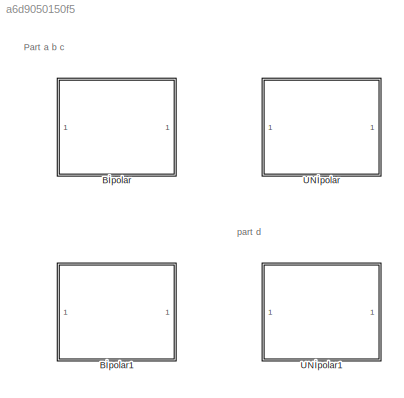
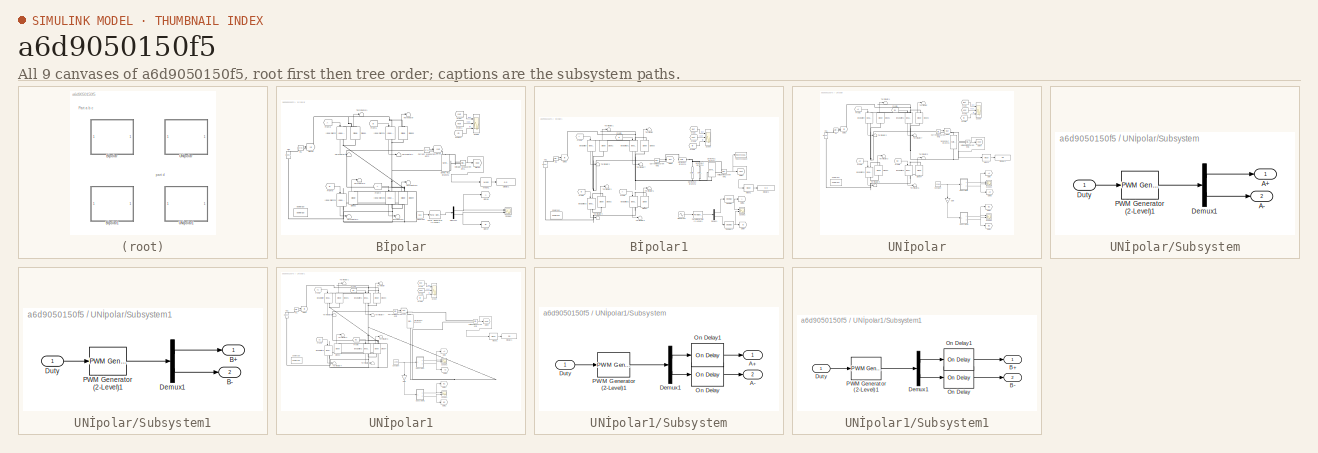
[diagram: thumbnail index - all 9 canvases of the model, root first then tree order]
MODEL slx_a6d9050150f5
KIND model
CONFIG AbsTol = auto
CONFIG FixedStep = auto
CONFIG MaxStep = auto
CONFIG MinStep = auto
CONFIG RelTol = 1e-3
CONFIG SampleTimeConstraint = Unconstrained
CONFIG Solver = VariableStepAuto
CONFIG SolverMode = Auto
CONFIG SolverName = VariableStepAuto
CONFIG StartTime = 0.0
CONFIG StopTime = 20e-3
BLOCK [SubSystem] Bİpolar
  Ports = []
  RequestExecContextInheritance = off
  Variant = off
BLOCK [Constant] Bİpolar/Constant
  Value = 5/16
BLOCK [Reference] Bİpolar/Current Measurement2  REF=powerlib/Measurements/Current Measurement
  Ports = [0, 1, 0, 0, 0, 1, 1]
  SourceBlock = powerlib/Measurements/Current Measurement
  SourceType = Current Measurement
  UserDataPersistent = on
BLOCK [Demux] Bİpolar/Demux1
  DisplayOption = bar
  Outputs = 2
  Ports = [1, 2]
BLOCK [Reference] Bİpolar/Diode1  REF=powerlib/Power
Electronics/Diode
  Ports = [0, 1, 0, 0, 0, 1, 1]
  SourceBlock = powerlib/Power\nElectronics/Diode
  SourceType = Diode
BLOCK [Reference] Bİpolar/Diode2  REF=powerlib/Power
Electronics/Diode
  Ports = [0, 1, 0, 0, 0, 1, 1]
  SourceBlock = powerlib/Power\nElectronics/Diode
  SourceType = Diode
BLOCK [Reference] Bİpolar/Diode3  REF=powerlib/Power
Electronics/Diode
  Ports = [0, 1, 0, 0, 0, 1, 1]
  SourceBlock = powerlib/Power\nElectronics/Diode
  SourceType = Diode
BLOCK [Reference] Bİpolar/Diode4  REF=powerlib/Power
Electronics/Diode
  Ports = [0, 1, 0, 0, 0, 1, 1]
  SourceBlock = powerlib/Power\nElectronics/Diode
  SourceType = Diode
BLOCK [Display] Bİpolar/Display1
  Decimation = 1
  Ports = [1]
BLOCK [From] Bİpolar/From
  GotoTag = Iout
BLOCK [From] Bİpolar/From1
  GotoTag = Vout
BLOCK [From] Bİpolar/From2
  GotoTag = Iin
BLOCK [From] Bİpolar/From3
BLOCK [From] Bİpolar/From4
BLOCK [From] Bİpolar/From5
  GotoTag = B
BLOCK [From] Bİpolar/From6
  GotoTag = B
BLOCK [Goto] Bİpolar/Goto3
  GotoTag = Iin
BLOCK [Goto] Bİpolar/Goto4
  GotoTag = Vout
BLOCK [Goto] Bİpolar/Goto5
  GotoTag = Iout
BLOCK [Goto] Bİpolar/Goto6
BLOCK [Goto] Bİpolar/Goto7
  GotoTag = B
BLOCK [Reference] Bİpolar/Ideal Switch  REF=powerlib/Power
Electronics/Ideal Switch
  Ports = [1, 1, 0, 0, 0, 1, 1]
  SourceBlock = powerlib/Power\nElectronics/Ideal Switch
  SourceType = Ideal Switch
BLOCK [Reference] Bİpolar/Ideal Switch1  REF=powerlib/Power
Electronics/Ideal Switch
  Ports = [1, 1, 0, 0, 0, 1, 1]
  SourceBlock = powerlib/Power\nElectronics/Ideal Switch
  SourceType = Ideal Switch
BLOCK [Reference] Bİpolar/Ideal Switch2  REF=powerlib/Power
Electronics/Ideal Switch
  Ports = [1, 1, 0, 0, 0, 1, 1]
  SourceBlock = powerlib/Power\nElectronics/Ideal Switch
  SourceType = Ideal Switch
BLOCK [Reference] Bİpolar/Ideal Switch3  REF=powerlib/Power
Electronics/Ideal Switch
  Ports = [1, 1, 0, 0, 0, 1, 1]
  SourceBlock = powerlib/Power\nElectronics/Ideal Switch
  SourceType = Ideal Switch
BLOCK [Reference] Bİpolar/Mean1  REF=powerlib_meascontrol/Measurements/Mean
  Ports = [1, 1]
  SourceBlock = powerlib_meascontrol/Measurements/Mean
  SourceType = Mean
BLOCK [Reference] Bİpolar/PWM Generator (2-Level)1  REF=powerlib_meascontrol/Pulse & Signal
Generators/PWM Generator
(2-Level)
  Ports = [1, 1]
  SourceBlock = powerlib_meascontrol/Pulse & Signal\nGenerators/PWM Generator\n(2-Level)
  SourceType = PWM Generator (2-Level)
BLOCK [Scope] Bİpolar/Scope
  NumInputPorts = 3
  Ports = [3]
  ScopeSpecificationString = Simulink.scopes.TimeScopeBlockCfg('CurrentConfiguration', extmgr.ConfigurationSet(extmgr.Configuration('Core','General UI',true,'FigureColor',[1 1 1]),extmgr.Configuration('Core','Source UI',true),extmgr.Configuration('Sources','WiredSimulink',true),extmgr.Configuration('Visuals','Time Domain',true,'SerializedDisplays',{struct('MinYLimReal','11.16066','MaxYLimReal','13.58634','YLabelReal','','MinY...<+3433ch>
BLOCK [Scope] Bİpolar/Scope2
  NumInputPorts = 2
  Ports = [2]
  ScopeSpecificationString = Simulink.scopes.TimeScopeBlockCfg('CurrentConfiguration', extmgr.ConfigurationSet(extmgr.Configuration('Core','General UI',true),extmgr.Configuration('Core','Source UI',true),extmgr.Configuration('Sources','WiredSimulink',true,'DataLoggingVariableName','ScopeData2'),extmgr.Configuration('Visuals','Time Domain',true,'SerializedDisplays',{struct('MinYLimReal','-0.01288','MaxYLimReal','1.03726','YLab...<+2051ch>
BLOCK [Reference] Bİpolar/Series RLC Branch1  REF=powerlib/Elements/Series RLC Branch
  Ports = [0, 0, 0, 0, 0, 1, 1]
  SourceBlock = powerlib/Elements/Series RLC Branch
  SourceType = Series RLC Branch
BLOCK [Terminator] Bİpolar/Terminator
BLOCK [Terminator] Bİpolar/Terminator1
BLOCK [Terminator] Bİpolar/Terminator2
BLOCK [Terminator] Bİpolar/Terminator3
BLOCK [Terminator] Bİpolar/Terminator4
BLOCK [Terminator] Bİpolar/Terminator5
BLOCK [Terminator] Bİpolar/Terminator6
BLOCK [Terminator] Bİpolar/Terminator7
BLOCK [Reference] Bİpolar/Vd1  REF=powerlib/Electrical
Sources/DC Voltage Source
  Ports = [0, 0, 0, 0, 0, 1, 1]
  SourceBlock = powerlib/Electrical\nSources/DC Voltage Source
  SourceType = DC Voltage Source
BLOCK [Reference] Bİpolar/Voltage Measurement1  REF=powerlib/Measurements/Voltage Measurement
  Ports = [0, 1, 0, 0, 0, 2]
  SourceBlock = powerlib/Measurements/Voltage Measurement
  SourceType = Voltage Measurement
  UserDataPersistent = on
BLOCK [Reference] Bİpolar/in1  REF=powerlib/Measurements/Current Measurement
  Ports = [0, 1, 0, 0, 0, 1, 1]
  SourceBlock = powerlib/Measurements/Current Measurement
  SourceType = Current Measurement
  UserDataPersistent = on
BLOCK [Reference] Bİpolar/powergui  REF=powerlib/powergui
  Ports = []
  Priority = 1
  SourceBlock = powerlib/powergui
  SourceType = PSB option menu block
  UserDataPersistent = on
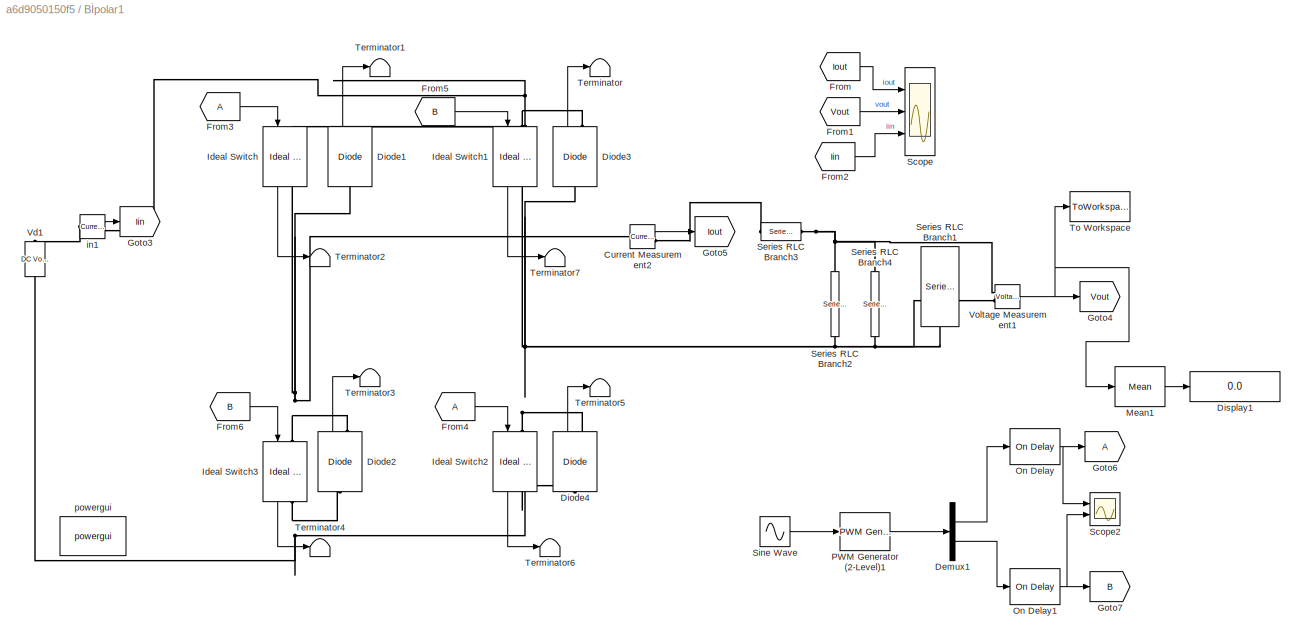
BLOCK [SubSystem] Bİpolar1
  Ports = []
  RequestExecContextInheritance = off
  Variant = off
BLOCK [Reference] Bİpolar1/Current Measurement2  REF=powerlib/Measurements/Current Measurement
  Ports = [0, 1, 0, 0, 0, 1, 1]
  SourceBlock = powerlib/Measurements/Current Measurement
  SourceType = Current Measurement
  UserDataPersistent = on
BLOCK [Demux] Bİpolar1/Demux1
  DisplayOption = bar
  Outputs = 2
  Ports = [1, 2]
BLOCK [Reference] Bİpolar1/Diode1  REF=powerlib/Power
Electronics/Diode
  Ports = [0, 1, 0, 0, 0, 1, 1]
  SourceBlock = powerlib/Power\nElectronics/Diode
  SourceType = Diode
BLOCK [Reference] Bİpolar1/Diode2  REF=powerlib/Power
Electronics/Diode
  Ports = [0, 1, 0, 0, 0, 1, 1]
  SourceBlock = powerlib/Power\nElectronics/Diode
  SourceType = Diode
BLOCK [Reference] Bİpolar1/Diode3  REF=powerlib/Power
Electronics/Diode
  Ports = [0, 1, 0, 0, 0, 1, 1]
  SourceBlock = powerlib/Power\nElectronics/Diode
  SourceType = Diode
BLOCK [Reference] Bİpolar1/Diode4  REF=powerlib/Power
Electronics/Diode
  Ports = [0, 1, 0, 0, 0, 1, 1]
  SourceBlock = powerlib/Power\nElectronics/Diode
  SourceType = Diode
BLOCK [Display] Bİpolar1/Display1
  Decimation = 1
  Ports = [1]
BLOCK [From] Bİpolar1/From
  GotoTag = Iout
BLOCK [From] Bİpolar1/From1
  GotoTag = Vout
BLOCK [From] Bİpolar1/From2
  GotoTag = Iin
BLOCK [From] Bİpolar1/From3
BLOCK [From] Bİpolar1/From4
BLOCK [From] Bİpolar1/From5
  GotoTag = B
BLOCK [From] Bİpolar1/From6
  GotoTag = B
BLOCK [Goto] Bİpolar1/Goto3
  GotoTag = Iin
BLOCK [Goto] Bİpolar1/Goto4
  GotoTag = Vout
BLOCK [Goto] Bİpolar1/Goto5
  GotoTag = Iout
BLOCK [Goto] Bİpolar1/Goto6
BLOCK [Goto] Bİpolar1/Goto7
  GotoTag = B
BLOCK [Reference] Bİpolar1/Ideal Switch  REF=powerlib/Power
Electronics/Ideal Switch
  Ports = [1, 1, 0, 0, 0, 1, 1]
  SourceBlock = powerlib/Power\nElectronics/Ideal Switch
  SourceType = Ideal Switch
BLOCK [Reference] Bİpolar1/Ideal Switch1  REF=powerlib/Power
Electronics/Ideal Switch
  Ports = [1, 1, 0, 0, 0, 1, 1]
  SourceBlock = powerlib/Power\nElectronics/Ideal Switch
  SourceType = Ideal Switch
BLOCK [Reference] Bİpolar1/Ideal Switch2  REF=powerlib/Power
Electronics/Ideal Switch
  Ports = [1, 1, 0, 0, 0, 1, 1]
  SourceBlock = powerlib/Power\nElectronics/Ideal Switch
  SourceType = Ideal Switch
BLOCK [Reference] Bİpolar1/Ideal Switch3  REF=powerlib/Power
Electronics/Ideal Switch
  Ports = [1, 1, 0, 0, 0, 1, 1]
  SourceBlock = powerlib/Power\nElectronics/Ideal Switch
  SourceType = Ideal Switch
BLOCK [Reference] Bİpolar1/Mean1  REF=powerlib_meascontrol/Measurements/Mean
  Ports = [1, 1]
  SourceBlock = powerlib_meascontrol/Measurements/Mean
  SourceType = Mean
BLOCK [Reference] Bİpolar1/On Delay  REF=powerlib_meascontrol/Logic/On Delay
  Ports = [1, 1]
  SourceBlock = powerlib_meascontrol/Logic/On Delay
  SourceType = On/Off Delay
BLOCK [Reference] Bİpolar1/On Delay1  REF=powerlib_meascontrol/Logic/On Delay
  Ports = [1, 1]
  SourceBlock = powerlib_meascontrol/Logic/On Delay
  SourceType = On/Off Delay
BLOCK [Reference] Bİpolar1/PWM Generator (2-Level)1  REF=powerlib_meascontrol/Pulse & Signal
Generators/PWM Generator
(2-Level)
  Ports = [1, 1]
  SourceBlock = powerlib_meascontrol/Pulse & Signal\nGenerators/PWM Generator\n(2-Level)
  SourceType = PWM Generator (2-Level)
BLOCK [Scope] Bİpolar1/Scope
  NumInputPorts = 3
  Ports = [3]
  ScopeSpecificationString = Simulink.scopes.TimeScopeBlockCfg('CurrentConfiguration', extmgr.ConfigurationSet(extmgr.Configuration('Core','General UI',true,'FigureColor',[1 1 1]),extmgr.Configuration('Core','Source UI',true),extmgr.Configuration('Sources','WiredSimulink',true),extmgr.Configuration('Visuals','Time Domain',true,'SerializedDisplays',{struct('MinYLimReal','-14.62757','MaxYLimReal','14.63184','YLabelReal','','Min...<+3514ch>
BLOCK [Scope] Bİpolar1/Scope2
  NumInputPorts = 2
  Ports = [2]
  ScopeSpecificationString = Simulink.scopes.TimeScopeBlockCfg('CurrentConfiguration', extmgr.ConfigurationSet(extmgr.Configuration('Core','General UI',true),extmgr.Configuration('Core','Source UI',true),extmgr.Configuration('Sources','WiredSimulink',true,'DataLoggingVariableName','ScopeData2'),extmgr.Configuration('Visuals','Time Domain',true,'SerializedDisplays',{struct('MinYLimReal','-0.02878','MaxYLimReal','1.05339','YLab...<+2078ch>
BLOCK [Reference] Bİpolar1/Series RLC Branch1  REF=powerlib/Elements/Series RLC Branch
  Ports = [0, 0, 0, 0, 0, 1, 1]
  SourceBlock = powerlib/Elements/Series RLC Branch
  SourceType = Series RLC Branch
BLOCK [Reference] Bİpolar1/Series RLC Branch2  REF=powerlib/Elements/Series RLC Branch
  Ports = [0, 0, 0, 0, 0, 1, 1]
  SourceBlock = powerlib/Elements/Series RLC Branch
  SourceType = Series RLC Branch
BLOCK [Reference] Bİpolar1/Series RLC Branch3  REF=powerlib/Elements/Series RLC Branch
  Ports = [0, 0, 0, 0, 0, 1, 1]
  SourceBlock = powerlib/Elements/Series RLC Branch
  SourceType = Series RLC Branch
BLOCK [Reference] Bİpolar1/Series RLC Branch4  REF=powerlib/Elements/Series RLC Branch
  Ports = [0, 0, 0, 0, 0, 1, 1]
  SourceBlock = powerlib/Elements/Series RLC Branch
  SourceType = Series RLC Branch
BLOCK [Sin] Bİpolar1/Sine Wave
  Amplitude = 36/48
  Frequency = 800*pi
  Ports = [0, 1]
  SampleTime = 0
BLOCK [Terminator] Bİpolar1/Terminator
BLOCK [Terminator] Bİpolar1/Terminator1
BLOCK [Terminator] Bİpolar1/Terminator2
BLOCK [Terminator] Bİpolar1/Terminator3
BLOCK [Terminator] Bİpolar1/Terminator4
BLOCK [Terminator] Bİpolar1/Terminator5
BLOCK [Terminator] Bİpolar1/Terminator6
BLOCK [Terminator] Bİpolar1/Terminator7
BLOCK [ToWorkspace] Bİpolar1/To Workspace
  FixptAsFi = on
  MaxDataPoints = inf
  Ports = [1]
  SampleTime = -1
  Save2DSignal = 3-D array (concatenate along third dimension)
  SaveFormat = Structure With Time
  VariableName = sind
BLOCK [Reference] Bİpolar1/Vd1  REF=powerlib/Electrical
Sources/DC Voltage Source
  Ports = [0, 0, 0, 0, 0, 1, 1]
  SourceBlock = powerlib/Electrical\nSources/DC Voltage Source
  SourceType = DC Voltage Source
BLOCK [Reference] Bİpolar1/Voltage Measurement1  REF=powerlib/Measurements/Voltage Measurement
  Ports = [0, 1, 0, 0, 0, 2]
  SourceBlock = powerlib/Measurements/Voltage Measurement
  SourceType = Voltage Measurement
  UserDataPersistent = on
BLOCK [Reference] Bİpolar1/in1  REF=powerlib/Measurements/Current Measurement
  Ports = [0, 1, 0, 0, 0, 1, 1]
  SourceBlock = powerlib/Measurements/Current Measurement
  SourceType = Current Measurement
  UserDataPersistent = on
BLOCK [Reference] Bİpolar1/powergui  REF=powerlib/powergui
  Ports = []
  Priority = 1
  SourceBlock = powerlib/powergui
  SourceType = PSB option menu block
  UserDataPersistent = on
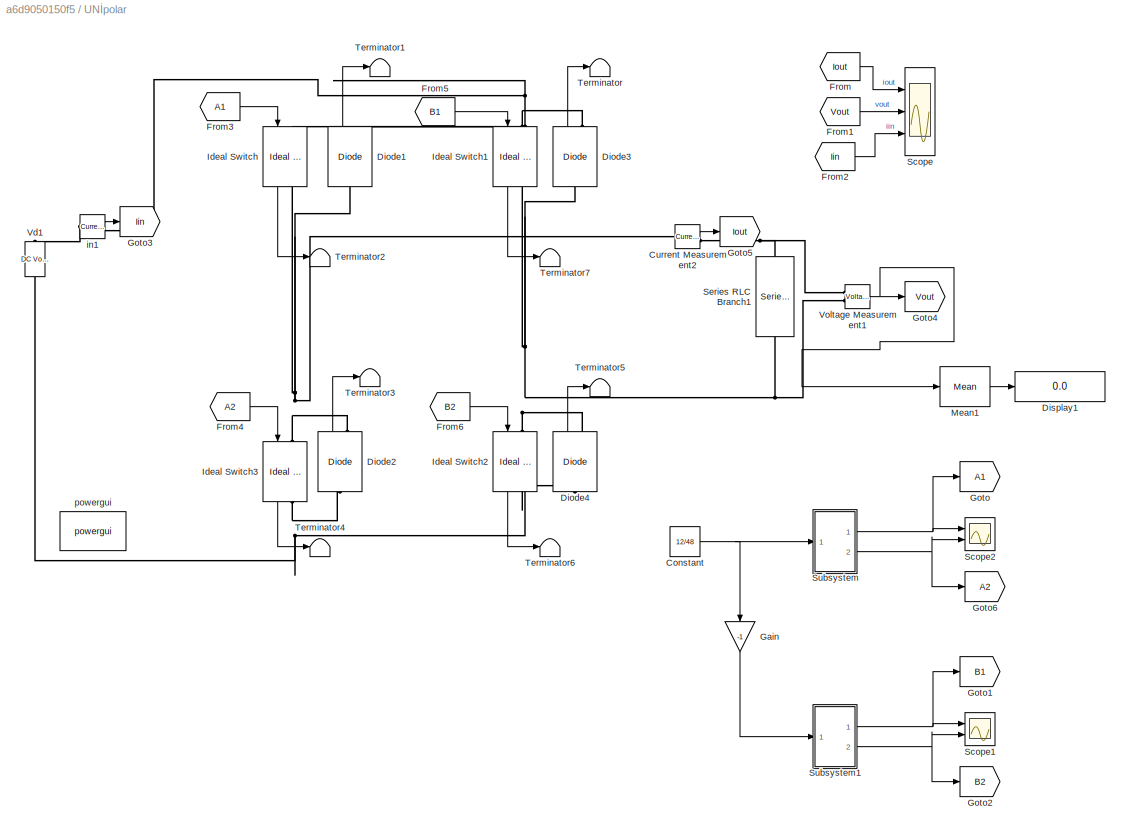
BLOCK [SubSystem] UNİpolar
  Ports = []
  RequestExecContextInheritance = off
  Variant = off
BLOCK [Constant] UNİpolar/Constant
  Value = 12/48
BLOCK [Reference] UNİpolar/Current Measurement2  REF=powerlib/Measurements/Current Measurement
  Ports = [0, 1, 0, 0, 0, 1, 1]
  SourceBlock = powerlib/Measurements/Current Measurement
  SourceType = Current Measurement
  UserDataPersistent = on
BLOCK [Reference] UNİpolar/Diode1  REF=powerlib/Power
Electronics/Diode
  Ports = [0, 1, 0, 0, 0, 1, 1]
  SourceBlock = powerlib/Power\nElectronics/Diode
  SourceType = Diode
BLOCK [Reference] UNİpolar/Diode2  REF=powerlib/Power
Electronics/Diode
  Ports = [0, 1, 0, 0, 0, 1, 1]
  SourceBlock = powerlib/Power\nElectronics/Diode
  SourceType = Diode
BLOCK [Reference] UNİpolar/Diode3  REF=powerlib/Power
Electronics/Diode
  Ports = [0, 1, 0, 0, 0, 1, 1]
  SourceBlock = powerlib/Power\nElectronics/Diode
  SourceType = Diode
BLOCK [Reference] UNİpolar/Diode4  REF=powerlib/Power
Electronics/Diode
  Ports = [0, 1, 0, 0, 0, 1, 1]
  SourceBlock = powerlib/Power\nElectronics/Diode
  SourceType = Diode
BLOCK [Display] UNİpolar/Display1
  Decimation = 1
  Ports = [1]
BLOCK [From] UNİpolar/From
  GotoTag = Iout
BLOCK [From] UNİpolar/From1
  GotoTag = Vout
BLOCK [From] UNİpolar/From2
  GotoTag = Iin
BLOCK [From] UNİpolar/From3
  GotoTag = A1
BLOCK [From] UNİpolar/From4
  GotoTag = A2
BLOCK [From] UNİpolar/From5
  GotoTag = B1
BLOCK [From] UNİpolar/From6
  GotoTag = B2
BLOCK [Gain] UNİpolar/Gain
  Gain = -1
  OutDataTypeStr = Inherit: Inherit via internal rule
  ParamDataTypeStr = Inherit: Inherit via internal rule
  SaturateOnIntegerOverflow = off
BLOCK [Goto] UNİpolar/Goto
  GotoTag = A1
BLOCK [Goto] UNİpolar/Goto1
  GotoTag = B1
BLOCK [Goto] UNİpolar/Goto2
  GotoTag = B2
BLOCK [Goto] UNİpolar/Goto3
  GotoTag = Iin
BLOCK [Goto] UNİpolar/Goto4
  GotoTag = Vout
BLOCK [Goto] UNİpolar/Goto5
  GotoTag = Iout
BLOCK [Goto] UNİpolar/Goto6
  GotoTag = A2
BLOCK [Reference] UNİpolar/Ideal Switch  REF=powerlib/Power
Electronics/Ideal Switch
  Ports = [1, 1, 0, 0, 0, 1, 1]
  SourceBlock = powerlib/Power\nElectronics/Ideal Switch
  SourceType = Ideal Switch
BLOCK [Reference] UNİpolar/Ideal Switch1  REF=powerlib/Power
Electronics/Ideal Switch
  Ports = [1, 1, 0, 0, 0, 1, 1]
  SourceBlock = powerlib/Power\nElectronics/Ideal Switch
  SourceType = Ideal Switch
BLOCK [Reference] UNİpolar/Ideal Switch2  REF=powerlib/Power
Electronics/Ideal Switch
  Ports = [1, 1, 0, 0, 0, 1, 1]
  SourceBlock = powerlib/Power\nElectronics/Ideal Switch
  SourceType = Ideal Switch
BLOCK [Reference] UNİpolar/Ideal Switch3  REF=powerlib/Power
Electronics/Ideal Switch
  Ports = [1, 1, 0, 0, 0, 1, 1]
  SourceBlock = powerlib/Power\nElectronics/Ideal Switch
  SourceType = Ideal Switch
BLOCK [Reference] UNİpolar/Mean1  REF=powerlib_meascontrol/Measurements/Mean
  Ports = [1, 1]
  SourceBlock = powerlib_meascontrol/Measurements/Mean
  SourceType = Mean
BLOCK [Scope] UNİpolar/Scope
  NumInputPorts = 3
  Ports = [3]
  ScopeSpecificationString = Simulink.scopes.TimeScopeBlockCfg('CurrentConfiguration', extmgr.ConfigurationSet(extmgr.Configuration('Core','General UI',true,'FigureColor',[1 1 1]),extmgr.Configuration('Core','Source UI',true),extmgr.Configuration('Sources','WiredSimulink',true),extmgr.Configuration('Visuals','Time Domain',true,'SerializedDisplays',{struct('MinYLimReal','11.76245','MaxYLimReal','12.82649','YLabelReal','','MinY...<+3460ch>
BLOCK [Scope] UNİpolar/Scope1
  NumInputPorts = 2
  Ports = [2]
  ScopeSpecificationString = Simulink.scopes.TimeScopeBlockCfg('CurrentConfiguration', extmgr.ConfigurationSet(extmgr.Configuration('Core','General UI',true),extmgr.Configuration('Core','Source UI',true),extmgr.Configuration('Sources','WiredSimulink',true,'DataLoggingVariableName','ScopeData1'),extmgr.Configuration('Visuals','Time Domain',true,'SerializedDisplays',{struct('MinYLimReal','-0.01288','MaxYLimReal','1.03726','YLab...<+2051ch>
BLOCK [Scope] UNİpolar/Scope2
  NumInputPorts = 2
  Ports = [2]
  ScopeSpecificationString = Simulink.scopes.TimeScopeBlockCfg('CurrentConfiguration', extmgr.ConfigurationSet(extmgr.Configuration('Core','General UI',true),extmgr.Configuration('Core','Source UI',true),extmgr.Configuration('Sources','WiredSimulink',true,'DataLoggingVariableName','ScopeData2'),extmgr.Configuration('Visuals','Time Domain',true,'SerializedDisplays',{struct('MinYLimReal','-0.01288','MaxYLimReal','1.03726','YLab...<+2051ch>
BLOCK [Reference] UNİpolar/Series RLC Branch1  REF=powerlib/Elements/Series RLC Branch
  Ports = [0, 0, 0, 0, 0, 1, 1]
  SourceBlock = powerlib/Elements/Series RLC Branch
  SourceType = Series RLC Branch
BLOCK [SubSystem] UNİpolar/Subsystem
  Ports = [1, 2]
  RequestExecContextInheritance = off
  Variant = off
BLOCK [Outport] UNİpolar/Subsystem/A+
  IconDisplay = Port number
BLOCK [Outport] UNİpolar/Subsystem/A-
  IconDisplay = Port number
  Port = 2
BLOCK [Demux] UNİpolar/Subsystem/Demux1
  DisplayOption = bar
  Outputs = 2
  Ports = [1, 2]
BLOCK [Inport] UNİpolar/Subsystem/Duty
  IconDisplay = Port number
BLOCK [Reference] UNİpolar/Subsystem/PWM Generator (2-Level)1  REF=powerlib_meascontrol/Pulse & Signal
Generators/PWM Generator
(2-Level)
  Ports = [1, 1]
  SourceBlock = powerlib_meascontrol/Pulse & Signal\nGenerators/PWM Generator\n(2-Level)
  SourceType = PWM Generator (2-Level)
BLOCK [SubSystem] UNİpolar/Subsystem1
  Ports = [1, 2]
  RequestExecContextInheritance = off
  Variant = off
BLOCK [Outport] UNİpolar/Subsystem1/B+
  IconDisplay = Port number
BLOCK [Outport] UNİpolar/Subsystem1/B-
  IconDisplay = Port number
  Port = 2
BLOCK [Demux] UNİpolar/Subsystem1/Demux1
  DisplayOption = bar
  Outputs = 2
  Ports = [1, 2]
BLOCK [Inport] UNİpolar/Subsystem1/Duty
  IconDisplay = Port number
BLOCK [Reference] UNİpolar/Subsystem1/PWM Generator (2-Level)1  REF=powerlib_meascontrol/Pulse & Signal
Generators/PWM Generator
(2-Level)
  Ports = [1, 1]
  SourceBlock = powerlib_meascontrol/Pulse & Signal\nGenerators/PWM Generator\n(2-Level)
  SourceType = PWM Generator (2-Level)
BLOCK [Terminator] UNİpolar/Terminator
BLOCK [Terminator] UNİpolar/Terminator1
BLOCK [Terminator] UNİpolar/Terminator2
BLOCK [Terminator] UNİpolar/Terminator3
BLOCK [Terminator] UNİpolar/Terminator4
BLOCK [Terminator] UNİpolar/Terminator5
BLOCK [Terminator] UNİpolar/Terminator6
BLOCK [Terminator] UNİpolar/Terminator7
BLOCK [Reference] UNİpolar/Vd1  REF=powerlib/Electrical
Sources/DC Voltage Source
  Ports = [0, 0, 0, 0, 0, 1, 1]
  SourceBlock = powerlib/Electrical\nSources/DC Voltage Source
  SourceType = DC Voltage Source
BLOCK [Reference] UNİpolar/Voltage Measurement1  REF=powerlib/Measurements/Voltage Measurement
  Ports = [0, 1, 0, 0, 0, 2]
  SourceBlock = powerlib/Measurements/Voltage Measurement
  SourceType = Voltage Measurement
  UserDataPersistent = on
BLOCK [Reference] UNİpolar/in1  REF=powerlib/Measurements/Current Measurement
  Ports = [0, 1, 0, 0, 0, 1, 1]
  SourceBlock = powerlib/Measurements/Current Measurement
  SourceType = Current Measurement
  UserDataPersistent = on
BLOCK [Reference] UNİpolar/powergui  REF=powerlib/powergui
  Ports = []
  Priority = 1
  SourceBlock = powerlib/powergui
  SourceType = PSB option menu block
  UserDataPersistent = on
BLOCK [SubSystem] UNİpolar1
  Ports = []
  RequestExecContextInheritance = off
  Variant = off
BLOCK [Constant] UNİpolar1/Constant
  Value = 12/48
BLOCK [Reference] UNİpolar1/Current Measurement2  REF=powerlib/Measurements/Current Measurement
  Ports = [0, 1, 0, 0, 0, 1, 1]
  SourceBlock = powerlib/Measurements/Current Measurement
  SourceType = Current Measurement
  UserDataPersistent = on
BLOCK [Reference] UNİpolar1/Diode1  REF=powerlib/Power
Electronics/Diode
  Ports = [0, 1, 0, 0, 0, 1, 1]
  SourceBlock = powerlib/Power\nElectronics/Diode
  SourceType = Diode
BLOCK [Reference] UNİpolar1/Diode2  REF=powerlib/Power
Electronics/Diode
  Ports = [0, 1, 0, 0, 0, 1, 1]
  SourceBlock = powerlib/Power\nElectronics/Diode
  SourceType = Diode
BLOCK [Reference] UNİpolar1/Diode3  REF=powerlib/Power
Electronics/Diode
  Ports = [0, 1, 0, 0, 0, 1, 1]
  SourceBlock = powerlib/Power\nElectronics/Diode
  SourceType = Diode
BLOCK [Reference] UNİpolar1/Diode4  REF=powerlib/Power
Electronics/Diode
  Ports = [0, 1, 0, 0, 0, 1, 1]
  SourceBlock = powerlib/Power\nElectronics/Diode
  SourceType = Diode
BLOCK [Display] UNİpolar1/Display1
  Decimation = 1
  Ports = [1]
BLOCK [From] UNİpolar1/From
  GotoTag = Iout
BLOCK [From] UNİpolar1/From1
  GotoTag = Vout
BLOCK [From] UNİpolar1/From2
  GotoTag = Iin
BLOCK [From] UNİpolar1/From3
  GotoTag = A1
BLOCK [From] UNİpolar1/From4
  GotoTag = A2
BLOCK [From] UNİpolar1/From5
  GotoTag = B1
BLOCK [From] UNİpolar1/From6
  GotoTag = B2
BLOCK [Gain] UNİpolar1/Gain
  Gain = -1
  OutDataTypeStr = Inherit: Inherit via internal rule
  ParamDataTypeStr = Inherit: Inherit via internal rule
  SaturateOnIntegerOverflow = off
BLOCK [Goto] UNİpolar1/Goto
  GotoTag = A1
BLOCK [Goto] UNİpolar1/Goto1
  GotoTag = B1
BLOCK [Goto] UNİpolar1/Goto2
  GotoTag = B2
BLOCK [Goto] UNİpolar1/Goto3
  GotoTag = Iin
BLOCK [Goto] UNİpolar1/Goto4
  GotoTag = Vout
BLOCK [Goto] UNİpolar1/Goto5
  GotoTag = Iout
BLOCK [Goto] UNİpolar1/Goto6
  GotoTag = A2
BLOCK [Reference] UNİpolar1/Ideal Switch  REF=powerlib/Power
Electronics/Ideal Switch
  Ports = [1, 1, 0, 0, 0, 1, 1]
  SourceBlock = powerlib/Power\nElectronics/Ideal Switch
  SourceType = Ideal Switch
BLOCK [Reference] UNİpolar1/Ideal Switch1  REF=powerlib/Power
Electronics/Ideal Switch
  Ports = [1, 1, 0, 0, 0, 1, 1]
  SourceBlock = powerlib/Power\nElectronics/Ideal Switch
  SourceType = Ideal Switch
BLOCK [Reference] UNİpolar1/Ideal Switch2  REF=powerlib/Power
Electronics/Ideal Switch
  Ports = [1, 1, 0, 0, 0, 1, 1]
  SourceBlock = powerlib/Power\nElectronics/Ideal Switch
  SourceType = Ideal Switch
BLOCK [Reference] UNİpolar1/Ideal Switch3  REF=powerlib/Power
Electronics/Ideal Switch
  Ports = [1, 1, 0, 0, 0, 1, 1]
  SourceBlock = powerlib/Power\nElectronics/Ideal Switch
  SourceType = Ideal Switch
BLOCK [Reference] UNİpolar1/Mean1  REF=powerlib_meascontrol/Measurements/Mean
  Ports = [1, 1]
  SourceBlock = powerlib_meascontrol/Measurements/Mean
  SourceType = Mean
BLOCK [Scope] UNİpolar1/Scope
  NumInputPorts = 3
  Ports = [3]
  ScopeSpecificationString = Simulink.scopes.TimeScopeBlockCfg('CurrentConfiguration', extmgr.ConfigurationSet(extmgr.Configuration('Core','General UI',true,'FigureColor',[1 1 1]),extmgr.Configuration('Core','Source UI',true),extmgr.Configuration('Sources','WiredSimulink',true),extmgr.Configuration('Visuals','Time Domain',true,'SerializedDisplays',{struct('MinYLimReal','-0.00128','MaxYLimReal','0.01149','YLabelReal','','MinYL...<+3427ch>
BLOCK [Scope] UNİpolar1/Scope1
  NumInputPorts = 2
  Ports = [2]
  ScopeSpecificationString = Simulink.scopes.TimeScopeBlockCfg('CurrentConfiguration', extmgr.ConfigurationSet(extmgr.Configuration('Core','General UI',true),extmgr.Configuration('Core','Source UI',true),extmgr.Configuration('Sources','WiredSimulink',true,'DataLoggingVariableName','ScopeData1'),extmgr.Configuration('Visuals','Time Domain',true,'SerializedDisplays',{struct('MinYLimReal','-0.01288','MaxYLimReal','1.03726','YLab...<+2051ch>
BLOCK [Scope] UNİpolar1/Scope2
  NumInputPorts = 2
  Ports = [2]
  ScopeSpecificationString = Simulink.scopes.TimeScopeBlockCfg('CurrentConfiguration', extmgr.ConfigurationSet(extmgr.Configuration('Core','General UI',true,'FigureColor',[1 1 1]),extmgr.Configuration('Core','Source UI',true),extmgr.Configuration('Sources','WiredSimulink',true,'DataLoggingVariableName','ScopeData2'),extmgr.Configuration('Visuals','Time Domain',true,'SerializedDisplays',{struct('MinYLimReal','-0.05593','MaxYLi...<+2614ch>
BLOCK [Reference] UNİpolar1/Series RLC Branch1  REF=powerlib/Elements/Series RLC Branch
  Ports = [0, 0, 0, 0, 0, 1, 1]
  SourceBlock = powerlib/Elements/Series RLC Branch
  SourceType = Series RLC Branch
BLOCK [SubSystem] UNİpolar1/Subsystem
  Ports = [1, 2]
  RequestExecContextInheritance = off
  Variant = off
BLOCK [Outport] UNİpolar1/Subsystem/A+
  IconDisplay = Port number
BLOCK [Outport] UNİpolar1/Subsystem/A-
  IconDisplay = Port number
  Port = 2
BLOCK [Demux] UNİpolar1/Subsystem/Demux1
  DisplayOption = bar
  Outputs = 2
  Ports = [1, 2]
BLOCK [Inport] UNİpolar1/Subsystem/Duty
  IconDisplay = Port number
BLOCK [Reference] UNİpolar1/Subsystem/On Delay  REF=powerlib_meascontrol/Logic/On Delay
  Ports = [1, 1]
  SourceBlock = powerlib_meascontrol/Logic/On Delay
  SourceType = On/Off Delay
BLOCK [Reference] UNİpolar1/Subsystem/On Delay1  REF=powerlib_meascontrol/Logic/On Delay
  Ports = [1, 1]
  SourceBlock = powerlib_meascontrol/Logic/On Delay
  SourceType = On/Off Delay
BLOCK [Reference] UNİpolar1/Subsystem/PWM Generator (2-Level)1  REF=powerlib_meascontrol/Pulse & Signal
Generators/PWM Generator
(2-Level)
  Ports = [1, 1]
  SourceBlock = powerlib_meascontrol/Pulse & Signal\nGenerators/PWM Generator\n(2-Level)
  SourceType = PWM Generator (2-Level)
BLOCK [SubSystem] UNİpolar1/Subsystem1
  Ports = [1, 2]
  RequestExecContextInheritance = off
  Variant = off
BLOCK [Outport] UNİpolar1/Subsystem1/B+
  IconDisplay = Port number
BLOCK [Outport] UNİpolar1/Subsystem1/B-
  IconDisplay = Port number
  Port = 2
BLOCK [Demux] UNİpolar1/Subsystem1/Demux1
  DisplayOption = bar
  Outputs = 2
  Ports = [1, 2]
BLOCK [Inport] UNİpolar1/Subsystem1/Duty
  IconDisplay = Port number
BLOCK [Reference] UNİpolar1/Subsystem1/On Delay  REF=powerlib_meascontrol/Logic/On Delay
  Ports = [1, 1]
  SourceBlock = powerlib_meascontrol/Logic/On Delay
  SourceType = On/Off Delay
BLOCK [Reference] UNİpolar1/Subsystem1/On Delay1  REF=powerlib_meascontrol/Logic/On Delay
  Ports = [1, 1]
  SourceBlock = powerlib_meascontrol/Logic/On Delay
  SourceType = On/Off Delay
BLOCK [Reference] UNİpolar1/Subsystem1/PWM Generator (2-Level)1  REF=powerlib_meascontrol/Pulse & Signal
Generators/PWM Generator
(2-Level)
  Ports = [1, 1]
  SourceBlock = powerlib_meascontrol/Pulse & Signal\nGenerators/PWM Generator\n(2-Level)
  SourceType = PWM Generator (2-Level)
BLOCK [Terminator] UNİpolar1/Terminator
BLOCK [Terminator] UNİpolar1/Terminator1
BLOCK [Terminator] UNİpolar1/Terminator2
BLOCK [Terminator] UNİpolar1/Terminator3
BLOCK [Terminator] UNİpolar1/Terminator4
BLOCK [Terminator] UNİpolar1/Terminator5
BLOCK [Terminator] UNİpolar1/Terminator6
BLOCK [Terminator] UNİpolar1/Terminator7
BLOCK [Reference] UNİpolar1/Vd1  REF=powerlib/Electrical
Sources/DC Voltage Source
  Ports = [0, 0, 0, 0, 0, 1, 1]
  SourceBlock = powerlib/Electrical\nSources/DC Voltage Source
  SourceType = DC Voltage Source
BLOCK [Reference] UNİpolar1/Voltage Measurement1  REF=powerlib/Measurements/Voltage Measurement
  Ports = [0, 1, 0, 0, 0, 2]
  SourceBlock = powerlib/Measurements/Voltage Measurement
  SourceType = Voltage Measurement
  UserDataPersistent = on
BLOCK [Reference] UNİpolar1/in1  REF=powerlib/Measurements/Current Measurement
  Ports = [0, 1, 0, 0, 0, 1, 1]
  SourceBlock = powerlib/Measurements/Current Measurement
  SourceType = Current Measurement
  UserDataPersistent = on
BLOCK [Reference] UNİpolar1/powergui  REF=powerlib/powergui
  Ports = []
  Priority = 1
  SourceBlock = powerlib/powergui
  SourceType = PSB option menu block
  UserDataPersistent = on
ANNOTATION (root): Part a b c
ANNOTATION (root): part d
LINE Bİpolar/Constant:1 -> Bİpolar/PWM Generator (2-Level)1:1
LINE Bİpolar/Current Measurement2:1 -> Bİpolar/Goto5:1
NET Bİpolar/Demux1:1 -> Bİpolar/Goto6:1, Bİpolar/Scope2:1
NET Bİpolar/Demux1:2 -> Bİpolar/Goto7:1, Bİpolar/Scope2:2
LINE Bİpolar/Diode1:1 -> Bİpolar/Terminator1:1
LINE Bİpolar/Diode2:1 -> Bİpolar/Terminator3:1
LINE Bİpolar/Diode3:1 -> Bİpolar/Terminator:1
LINE Bİpolar/Diode4:1 -> Bİpolar/Terminator5:1
LINE Bİpolar/From1:1 -> Bİpolar/Scope:2
LINE Bİpolar/From2:1 -> Bİpolar/Scope:3
LINE Bİpolar/From3:1 -> Bİpolar/Ideal Switch:1
LINE Bİpolar/From4:1 -> Bİpolar/Ideal Switch2:1
LINE Bİpolar/From5:1 -> Bİpolar/Ideal Switch1:1
LINE Bİpolar/From6:1 -> Bİpolar/Ideal Switch3:1
LINE Bİpolar/From:1 -> Bİpolar/Scope:1
LINE Bİpolar/Ideal Switch1:1 -> Bİpolar/Terminator7:1
LINE Bİpolar/Ideal Switch2:1 -> Bİpolar/Terminator6:1
LINE Bİpolar/Ideal Switch3:1 -> Bİpolar/Terminator4:1
LINE Bİpolar/Ideal Switch:1 -> Bİpolar/Terminator2:1
LINE Bİpolar/Mean1:1 -> Bİpolar/Display1:1
LINE Bİpolar/PWM Generator (2-Level)1:1 -> Bİpolar/Demux1:1
NET Bİpolar/Voltage Measurement1:1 -> Bİpolar/Goto4:1, Bİpolar/Mean1:1
LINE Bİpolar/in1:1 -> Bİpolar/Goto3:1
LINE Bİpolar1/Current Measurement2:1 -> Bİpolar1/Goto5:1
LINE Bİpolar1/Demux1:1 -> Bİpolar1/On Delay:1
LINE Bİpolar1/Demux1:2 -> Bİpolar1/On Delay1:1
LINE Bİpolar1/Diode1:1 -> Bİpolar1/Terminator1:1
LINE Bİpolar1/Diode2:1 -> Bİpolar1/Terminator3:1
LINE Bİpolar1/Diode3:1 -> Bİpolar1/Terminator:1
LINE Bİpolar1/Diode4:1 -> Bİpolar1/Terminator5:1
LINE Bİpolar1/From1:1 -> Bİpolar1/Scope:2
LINE Bİpolar1/From2:1 -> Bİpolar1/Scope:3
LINE Bİpolar1/From3:1 -> Bİpolar1/Ideal Switch:1
LINE Bİpolar1/From4:1 -> Bİpolar1/Ideal Switch2:1
LINE Bİpolar1/From5:1 -> Bİpolar1/Ideal Switch1:1
LINE Bİpolar1/From6:1 -> Bİpolar1/Ideal Switch3:1
LINE Bİpolar1/From:1 -> Bİpolar1/Scope:1
LINE Bİpolar1/Ideal Switch1:1 -> Bİpolar1/Terminator7:1
LINE Bİpolar1/Ideal Switch2:1 -> Bİpolar1/Terminator6:1
LINE Bİpolar1/Ideal Switch3:1 -> Bİpolar1/Terminator4:1
LINE Bİpolar1/Ideal Switch:1 -> Bİpolar1/Terminator2:1
LINE Bİpolar1/Mean1:1 -> Bİpolar1/Display1:1
NET Bİpolar1/On Delay1:1 -> Bİpolar1/Goto7:1, Bİpolar1/Scope2:2
NET Bİpolar1/On Delay:1 -> Bİpolar1/Goto6:1, Bİpolar1/Scope2:1
LINE Bİpolar1/PWM Generator (2-Level)1:1 -> Bİpolar1/Demux1:1
LINE Bİpolar1/Sine Wave:1 -> Bİpolar1/PWM Generator (2-Level)1:1
NET Bİpolar1/Voltage Measurement1:1 -> Bİpolar1/Goto4:1, Bİpolar1/Mean1:1, Bİpolar1/To Workspace:1
LINE Bİpolar1/in1:1 -> Bİpolar1/Goto3:1
NET UNİpolar/Constant:1 -> UNİpolar/Gain:1, UNİpolar/Subsystem:1
LINE UNİpolar/Current Measurement2:1 -> UNİpolar/Goto5:1
LINE UNİpolar/Diode1:1 -> UNİpolar/Terminator1:1
LINE UNİpolar/Diode2:1 -> UNİpolar/Terminator3:1
LINE UNİpolar/Diode3:1 -> UNİpolar/Terminator:1
LINE UNİpolar/Diode4:1 -> UNİpolar/Terminator5:1
LINE UNİpolar/From1:1 -> UNİpolar/Scope:2
LINE UNİpolar/From2:1 -> UNİpolar/Scope:3
LINE UNİpolar/From3:1 -> UNİpolar/Ideal Switch:1
LINE UNİpolar/From4:1 -> UNİpolar/Ideal Switch3:1
LINE UNİpolar/From5:1 -> UNİpolar/Ideal Switch1:1
LINE UNİpolar/From6:1 -> UNİpolar/Ideal Switch2:1
LINE UNİpolar/From:1 -> UNİpolar/Scope:1
LINE UNİpolar/Gain:1 -> UNİpolar/Subsystem1:1
LINE UNİpolar/Ideal Switch1:1 -> UNİpolar/Terminator7:1
LINE UNİpolar/Ideal Switch2:1 -> UNİpolar/Terminator6:1
LINE UNİpolar/Ideal Switch3:1 -> UNİpolar/Terminator4:1
LINE UNİpolar/Ideal Switch:1 -> UNİpolar/Terminator2:1
LINE UNİpolar/Mean1:1 -> UNİpolar/Display1:1
LINE UNİpolar/Subsystem/Demux1:1 -> UNİpolar/Subsystem/A+:1
LINE UNİpolar/Subsystem/Demux1:2 -> UNİpolar/Subsystem/A-:1
LINE UNİpolar/Subsystem/Duty:1 -> UNİpolar/Subsystem/PWM Generator (2-Level)1:1
LINE UNİpolar/Subsystem/PWM Generator (2-Level)1:1 -> UNİpolar/Subsystem/Demux1:1
LINE UNİpolar/Subsystem1/Demux1:1 -> UNİpolar/Subsystem1/B+:1
LINE UNİpolar/Subsystem1/Demux1:2 -> UNİpolar/Subsystem1/B-:1
LINE UNİpolar/Subsystem1/Duty:1 -> UNİpolar/Subsystem1/PWM Generator (2-Level)1:1
LINE UNİpolar/Subsystem1/PWM Generator (2-Level)1:1 -> UNİpolar/Subsystem1/Demux1:1
NET UNİpolar/Subsystem1:1 -> UNİpolar/Goto1:1, UNİpolar/Scope1:1
NET UNİpolar/Subsystem1:2 -> UNİpolar/Goto2:1, UNİpolar/Scope1:2
NET UNİpolar/Subsystem:1 -> UNİpolar/Goto:1, UNİpolar/Scope2:1
NET UNİpolar/Subsystem:2 -> UNİpolar/Goto6:1, UNİpolar/Scope2:2
NET UNİpolar/Voltage Measurement1:1 -> UNİpolar/Goto4:1, UNİpolar/Mean1:1
LINE UNİpolar/in1:1 -> UNİpolar/Goto3:1
NET UNİpolar1/Constant:1 -> UNİpolar1/Gain:1, UNİpolar1/Subsystem:1
LINE UNİpolar1/Current Measurement2:1 -> UNİpolar1/Goto5:1
LINE UNİpolar1/Diode1:1 -> UNİpolar1/Terminator1:1
LINE UNİpolar1/Diode2:1 -> UNİpolar1/Terminator3:1
LINE UNİpolar1/Diode3:1 -> UNİpolar1/Terminator:1
LINE UNİpolar1/Diode4:1 -> UNİpolar1/Terminator5:1
LINE UNİpolar1/From1:1 -> UNİpolar1/Scope:2
LINE UNİpolar1/From2:1 -> UNİpolar1/Scope:3
LINE UNİpolar1/From3:1 -> UNİpolar1/Ideal Switch:1
LINE UNİpolar1/From4:1 -> UNİpolar1/Ideal Switch3:1
LINE UNİpolar1/From5:1 -> UNİpolar1/Ideal Switch1:1
LINE UNİpolar1/From6:1 -> UNİpolar1/Ideal Switch2:1
LINE UNİpolar1/From:1 -> UNİpolar1/Scope:1
LINE UNİpolar1/Gain:1 -> UNİpolar1/Subsystem1:1
LINE UNİpolar1/Ideal Switch1:1 -> UNİpolar1/Terminator7:1
LINE UNİpolar1/Ideal Switch2:1 -> UNİpolar1/Terminator6:1
LINE UNİpolar1/Ideal Switch3:1 -> UNİpolar1/Terminator4:1
LINE UNİpolar1/Ideal Switch:1 -> UNİpolar1/Terminator2:1
LINE UNİpolar1/Mean1:1 -> UNİpolar1/Display1:1
LINE UNİpolar1/Subsystem/Demux1:1 -> UNİpolar1/Subsystem/On Delay1:1
LINE UNİpolar1/Subsystem/Demux1:2 -> UNİpolar1/Subsystem/On Delay:1
LINE UNİpolar1/Subsystem/Duty:1 -> UNİpolar1/Subsystem/PWM Generator (2-Level)1:1
LINE UNİpolar1/Subsystem/On Delay1:1 -> UNİpolar1/Subsystem/A+:1
LINE UNİpolar1/Subsystem/On Delay:1 -> UNİpolar1/Subsystem/A-:1
LINE UNİpolar1/Subsystem/PWM Generator (2-Level)1:1 -> UNİpolar1/Subsystem/Demux1:1
LINE UNİpolar1/Subsystem1/Demux1:1 -> UNİpolar1/Subsystem1/On Delay1:1
LINE UNİpolar1/Subsystem1/Demux1:2 -> UNİpolar1/Subsystem1/On Delay:1
LINE UNİpolar1/Subsystem1/Duty:1 -> UNİpolar1/Subsystem1/PWM Generator (2-Level)1:1
LINE UNİpolar1/Subsystem1/On Delay1:1 -> UNİpolar1/Subsystem1/B+:1
LINE UNİpolar1/Subsystem1/On Delay:1 -> UNİpolar1/Subsystem1/B-:1
LINE UNİpolar1/Subsystem1/PWM Generator (2-Level)1:1 -> UNİpolar1/Subsystem1/Demux1:1
NET UNİpolar1/Subsystem1:1 -> UNİpolar1/Goto1:1, UNİpolar1/Scope1:1
NET UNİpolar1/Subsystem1:2 -> UNİpolar1/Goto2:1, UNİpolar1/Scope1:2
NET UNİpolar1/Subsystem:1 -> UNİpolar1/Goto:1, UNİpolar1/Scope2:1
NET UNİpolar1/Subsystem:2 -> UNİpolar1/Goto6:1, UNİpolar1/Scope2:2
NET UNİpolar1/Voltage Measurement1:1 -> UNİpolar1/Goto4:1, UNİpolar1/Mean1:1
LINE UNİpolar1/in1:1 -> UNİpolar1/Goto3:1
PNET net1: Bİpolar/Current Measurement2:LConn1 -- Bİpolar/Diode1:LConn1 -- Bİpolar/Diode2:RConn1 -- Bİpolar/Ideal Switch3:LConn1 -- Bİpolar/Ideal Switch:RConn1
PNET net2: Bİpolar/Current Measurement2:RConn1 -- Bİpolar/Series RLC Branch1:LConn1 -- Bİpolar/Voltage Measurement1:LConn1
PNET net3: Bİpolar/Diode1:RConn1 -- Bİpolar/Diode3:RConn1 -- Bİpolar/Ideal Switch1:LConn1 -- Bİpolar/Ideal Switch:LConn1 -- Bİpolar/in1:RConn1
PNET net4: Bİpolar/Diode2:LConn1 -- Bİpolar/Diode4:LConn1 -- Bİpolar/Ideal Switch2:RConn1 -- Bİpolar/Ideal Switch3:RConn1 -- Bİpolar/Vd1:LConn1
PNET net5: Bİpolar/Diode3:LConn1 -- Bİpolar/Diode4:RConn1 -- Bİpolar/Ideal Switch1:RConn1 -- Bİpolar/Ideal Switch2:LConn1 -- Bİpolar/Series RLC Branch1:RConn1 -- Bİpolar/Voltage Measurement1:LConn2
PLINE Bİpolar/Vd1:RConn1 -- Bİpolar/in1:LConn1
PNET net6: Bİpolar1/Current Measurement2:LConn1 -- Bİpolar1/Diode1:LConn1 -- Bİpolar1/Diode2:RConn1 -- Bİpolar1/Ideal Switch3:LConn1 -- Bİpolar1/Ideal Switch:RConn1
PLINE Bİpolar1/Current Measurement2:RConn1 -- Bİpolar1/Series RLC Branch3:LConn1
PNET net7: Bİpolar1/Diode1:RConn1 -- Bİpolar1/Diode3:RConn1 -- Bİpolar1/Ideal Switch1:LConn1 -- Bİpolar1/Ideal Switch:LConn1 -- Bİpolar1/in1:RConn1
PNET net8: Bİpolar1/Diode2:LConn1 -- Bİpolar1/Diode4:LConn1 -- Bİpolar1/Ideal Switch2:RConn1 -- Bİpolar1/Ideal Switch3:RConn1 -- Bİpolar1/Vd1:LConn1
PNET net9: Bİpolar1/Diode3:LConn1 -- Bİpolar1/Diode4:RConn1 -- Bİpolar1/Ideal Switch1:RConn1 -- Bİpolar1/Ideal Switch2:LConn1 -- Bİpolar1/Series RLC Branch1:RConn1 -- Bİpolar1/Series RLC Branch2:RConn1 -- Bİpolar1/Series RLC Branch4:RConn1 -- Bİpolar1/Voltage Measurement1:LConn2
PNET net10: Bİpolar1/Series RLC Branch2:LConn1 -- Bİpolar1/Series RLC Branch3:RConn1 -- Bİpolar1/Series RLC Branch4:LConn1 -- Bİpolar1/Voltage Measurement1:LConn1
PLINE Bİpolar1/Vd1:RConn1 -- Bİpolar1/in1:LConn1
PNET net11: UNİpolar/Current Measurement2:LConn1 -- UNİpolar/Diode1:LConn1 -- UNİpolar/Diode2:RConn1 -- UNİpolar/Ideal Switch3:LConn1 -- UNİpolar/Ideal Switch:RConn1
PNET net12: UNİpolar/Current Measurement2:RConn1 -- UNİpolar/Series RLC Branch1:LConn1 -- UNİpolar/Voltage Measurement1:LConn1
PNET net13: UNİpolar/Diode1:RConn1 -- UNİpolar/Diode3:RConn1 -- UNİpolar/Ideal Switch1:LConn1 -- UNİpolar/Ideal Switch:LConn1 -- UNİpolar/in1:RConn1
PNET net14: UNİpolar/Diode2:LConn1 -- UNİpolar/Diode4:LConn1 -- UNİpolar/Ideal Switch2:RConn1 -- UNİpolar/Ideal Switch3:RConn1 -- UNİpolar/Vd1:LConn1
PNET net15: UNİpolar/Diode3:LConn1 -- UNİpolar/Diode4:RConn1 -- UNİpolar/Ideal Switch1:RConn1 -- UNİpolar/Ideal Switch2:LConn1 -- UNİpolar/Series RLC Branch1:RConn1 -- UNİpolar/Voltage Measurement1:LConn2
PLINE UNİpolar/Vd1:RConn1 -- UNİpolar/in1:LConn1
PNET net16: UNİpolar1/Current Measurement2:LConn1 -- UNİpolar1/Diode1:LConn1 -- UNİpolar1/Diode2:RConn1 -- UNİpolar1/Ideal Switch3:LConn1 -- UNİpolar1/Ideal Switch:RConn1
PNET net17: UNİpolar1/Current Measurement2:RConn1 -- UNİpolar1/Series RLC Branch1:LConn1 -- UNİpolar1/Voltage Measurement1:LConn1
PNET net18: UNİpolar1/Diode1:RConn1 -- UNİpolar1/Diode3:RConn1 -- UNİpolar1/Ideal Switch1:LConn1 -- UNİpolar1/Ideal Switch:LConn1 -- UNİpolar1/in1:RConn1
PNET net19: UNİpolar1/Diode2:LConn1 -- UNİpolar1/Diode4:LConn1 -- UNİpolar1/Ideal Switch2:RConn1 -- UNİpolar1/Ideal Switch3:RConn1 -- UNİpolar1/Vd1:LConn1
PNET net20: UNİpolar1/Diode3:LConn1 -- UNİpolar1/Diode4:RConn1 -- UNİpolar1/Ideal Switch1:RConn1 -- UNİpolar1/Ideal Switch2:LConn1 -- UNİpolar1/Series RLC Branch1:RConn1 -- UNİpolar1/Voltage Measurement1:LConn2
PLINE UNİpolar1/Vd1:RConn1 -- UNİpolar1/in1:LConn1
note: NET lines group one-source signal fan-out (src -> all destinations, sorted); 1:1 wires keep LINE; PNET lines group multi-terminal physical nets as a canonical sorted terminal list (undirected conserving connections); 2-terminal nets keep the pairwise PLINE form
